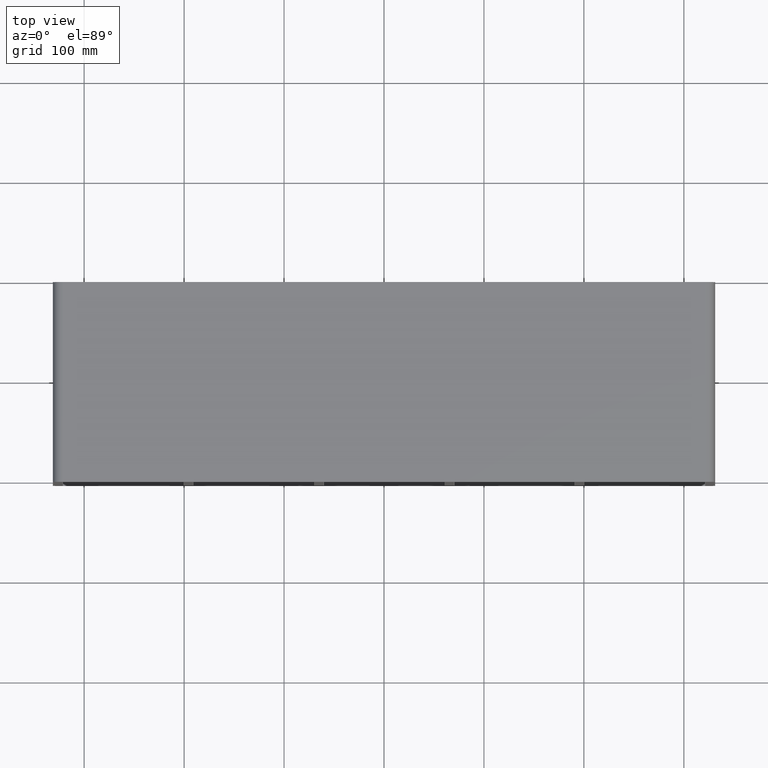
[diagram: clean part render]
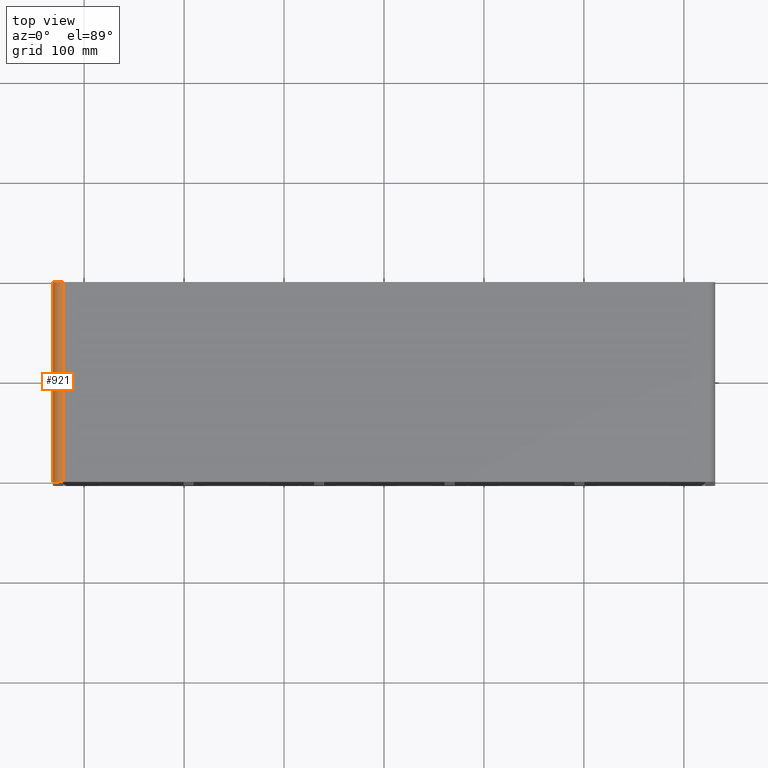
[diagram: same view with one face highlighted and labeled with its STEP entity id]
A machine part, top view. The second image highlights one B-rep face of the part: STEP entity #921.
In plain terms, the highlighted cylindrical surface (edge-blend (fillet) strip) has radius 10 mm, axis along (0, 1, 0).
Its self-contained STEP definition (entity closure, byte-faithful):
#726=CARTESIAN_POINT('',(-321.25,-3.0,119.00000000000003));
#727=VERTEX_POINT('',#726);
#734=CARTESIAN_POINT('',(-331.25,-3.0,109.00000000000003));
#735=VERTEX_POINT('',#734);
#736=CARTESIAN_POINT('',(-321.25,-3.0,109.00000000000003));
#737=DIRECTION('',(0.0,1.0,0.0));
#738=DIRECTION('',(-0.707106781186547,0.0,0.707106781186547));
#739=AXIS2_PLACEMENT_3D('',#736,#737,#738);
#740=CIRCLE('',#739,9.999999999999998);
#741=EDGE_CURVE('',#735,#727,#740,.T.);
#879=CARTESIAN_POINT('',(-321.25,197.0,119.00000000000003));
#880=VERTEX_POINT('',#879);
#887=CARTESIAN_POINT('',(-321.25,-3.0,119.00000000000003));
#888=DIRECTION('',(0.0,1.0,0.0));
#889=VECTOR('',#888,200.0);
#890=LINE('',#887,#889);
#891=EDGE_CURVE('',#727,#880,#890,.T.);
#897=CARTESIAN_POINT('',(-321.25,0.0,109.00000000000003));
#898=DIRECTION('',(0.0,1.0,0.0));
#899=DIRECTION('',(-0.707106781186547,0.0,0.707106781186547));
#900=AXIS2_PLACEMENT_3D('',#897,#898,#899);
#901=CYLINDRICAL_SURFACE('',#900,10.0);
#902=CARTESIAN_POINT('',(-331.25,197.0,109.00000000000003));
#903=VERTEX_POINT('',#902);
#904=CARTESIAN_POINT('',(-321.25,197.0,109.00000000000003));
#905=DIRECTION('',(0.0,-1.0,0.0));
#906=DIRECTION('',(-0.707106781186547,0.0,0.707106781186547));
#907=AXIS2_PLACEMENT_3D('',#904,#905,#906);
#908=CIRCLE('',#907,9.999999999999998);
#909=EDGE_CURVE('',#880,#903,#908,.T.);
#910=ORIENTED_EDGE('',*,*,#909,.T.);
#911=CARTESIAN_POINT('',(-331.25,197.0,109.00000000000003));
#912=DIRECTION('',(0.0,-1.0,0.0));
#913=VECTOR('',#912,200.0);
#914=LINE('',#911,#913);
#915=EDGE_CURVE('',#903,#735,#914,.T.);
#916=ORIENTED_EDGE('',*,*,#915,.T.);
#917=ORIENTED_EDGE('',*,*,#741,.T.);
#918=ORIENTED_EDGE('',*,*,#891,.T.);
#919=EDGE_LOOP('',(#910,#916,#917,#918));
#920=FACE_OUTER_BOUND('',#919,.T.);
#921=ADVANCED_FACE('',(#920),#901,.T.);